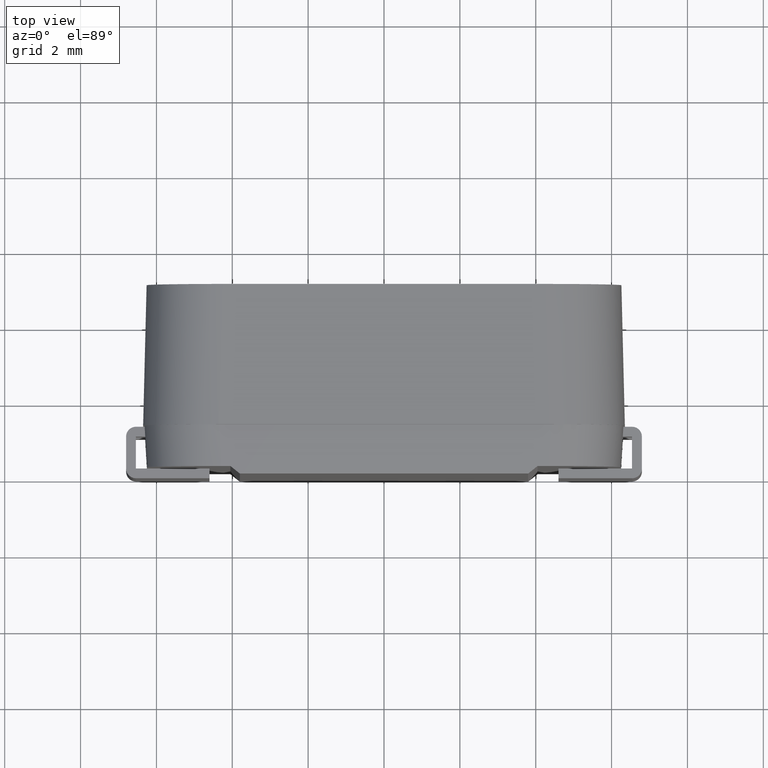
[diagram: clean part render]
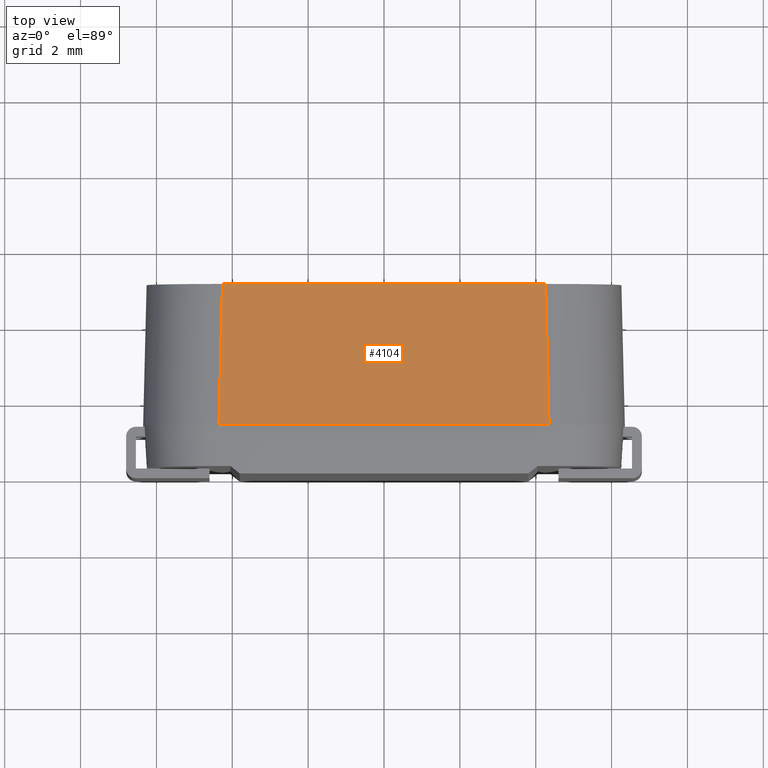
[diagram: same view with one face highlighted and labeled with its STEP entity id]
A machine part, top view. The second image highlights one B-rep face of the part: STEP entity #4104.
In plain terms, the highlighted planar face has unit normal (0, 0.0246, 0.9997).
Its self-contained STEP definition (entity closure, byte-faithful):
#28 = ORIENTED_EDGE ( 'NONE', *, *, #2043, .T. ) ;
#283 = LINE ( 'NONE', #4388, #2908 ) ;
#412 = CARTESIAN_POINT ( 'NONE',  ( -4.351815455388874376, 1.250846242838508982, 6.351209876059589199 ) ) ;
#1071 = CARTESIAN_POINT ( 'NONE',  ( 4.259533366766152795, 5.000000000000000000, 6.258927787436863177 ) ) ;
#1097 = VERTEX_POINT ( 'NONE', #1484 ) ;
#1267 = DIRECTION ( 'NONE',  ( 0.0000000000000000000, -0.9996972103353584105, 0.02460665860498176608 ) ) ;
#1327 = EDGE_CURVE ( 'NONE', #1097, #4358, #4939, .T. ) ;
#1484 = CARTESIAN_POINT ( 'NONE',  ( -4.259533366766152795, 5.000000000000000000, 6.258927787436864953 ) ) ;
#1796 = ORIENTED_EDGE ( 'NONE', *, *, #1327, .F. ) ;
#1800 = LINE ( 'NONE', #412, #2873 ) ;
#2043 = EDGE_CURVE ( 'NONE', #3038, #4358, #4928, .T. ) ;
#2265 = CARTESIAN_POINT ( 'NONE',  ( 4.350605579329287487, 1.300000000000000044, 6.349999999999996092 ) ) ;
#2342 = EDGE_CURVE ( 'NONE', #1097, #2952, #1800, .T. ) ;
#2437 = AXIS2_PLACEMENT_3D ( 'NONE', #3067, #5734, #1267 ) ;
#2570 = PLANE ( 'NONE',  #2437 ) ;
#2579 = DIRECTION ( 'NONE',  ( 1.000000000000000000, 0.0000000000000000000, -1.365923996832130870E-16 ) ) ;
#2604 = CARTESIAN_POINT ( 'NONE',  ( -4.350605579329283934, 1.300000000000000044, 6.349999999999997868 ) ) ;
#2827 = EDGE_CURVE ( 'NONE', #2952, #3038, #283, .T. ) ;
#2873 = VECTOR ( 'NONE', #5827, 999.9999999999998863 ) ;
#2908 = VECTOR ( 'NONE', #2579, 1000.000000000000000 ) ;
#2952 = VERTEX_POINT ( 'NONE', #2604 ) ;
#3038 = VERTEX_POINT ( 'NONE', #2265 ) ;
#3067 = CARTESIAN_POINT ( 'NONE',  ( -6.350000000000000533, 1.300000000000000044, 6.349999999999997868 ) ) ;
#3519 = CARTESIAN_POINT ( 'NONE',  ( -6.350000000000000533, 5.000000000000000000, 6.258927787436864953 ) ) ;
#3572 = CARTESIAN_POINT ( 'NONE',  ( 4.344130415459811267, 1.563067138074139883, 6.343524836130520761 ) ) ;
#3749 = VECTOR ( 'NONE', #4807, 1000.000000000000000 ) ;
#3755 = FACE_OUTER_BOUND ( 'NONE', #5563, .T. ) ;
#4104 = ADVANCED_FACE ( 'NONE', ( #3755 ), #2570, .T. ) ;
#4240 = ORIENTED_EDGE ( 'NONE', *, *, #2827, .T. ) ;
#4358 = VERTEX_POINT ( 'NONE', #1071 ) ;
#4388 = CARTESIAN_POINT ( 'NONE',  ( -6.350000000000000533, 1.300000000000000044, 6.349999999999997868 ) ) ;
#4529 = DIRECTION ( 'NONE',  ( -0.02459921247229897648, 0.9993946955490036199, -0.02459921247229895219 ) ) ;
#4692 = ORIENTED_EDGE ( 'NONE', *, *, #2342, .T. ) ;
#4807 = DIRECTION ( 'NONE',  ( 1.000000000000000000, 0.0000000000000000000, -1.365923996832131116E-16 ) ) ;
#4928 = LINE ( 'NONE', #3572, #5357 ) ;
#4939 = LINE ( 'NONE', #3519, #3749 ) ;
#5357 = VECTOR ( 'NONE', #4529, 999.9999999999998863 ) ;
#5563 = EDGE_LOOP ( 'NONE', ( #1796, #4692, #4240, #28 ) ) ;
#5734 = DIRECTION ( 'NONE',  ( 1.365510409163204209E-16, 0.02460665860498176954, 0.9996972103353585215 ) ) ;
#5827 = DIRECTION ( 'NONE',  ( -0.02459921247229895913, -0.9993946955490036199, 0.02459921247229895913 ) ) ;